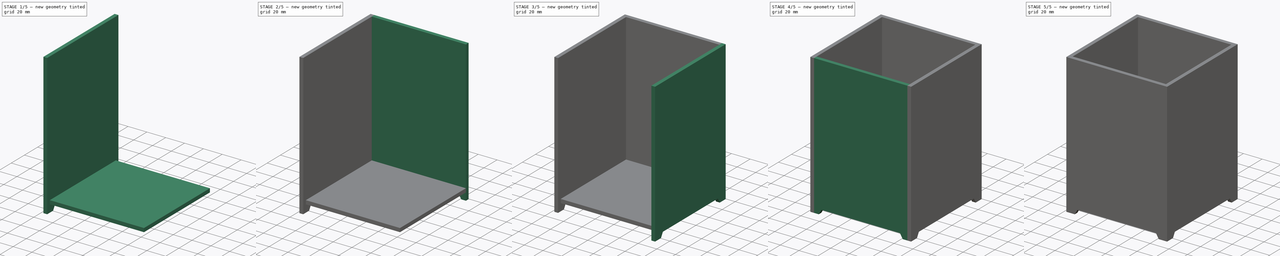
[diagram: build sequence overview — one tinted view per stage of 5, left to right]
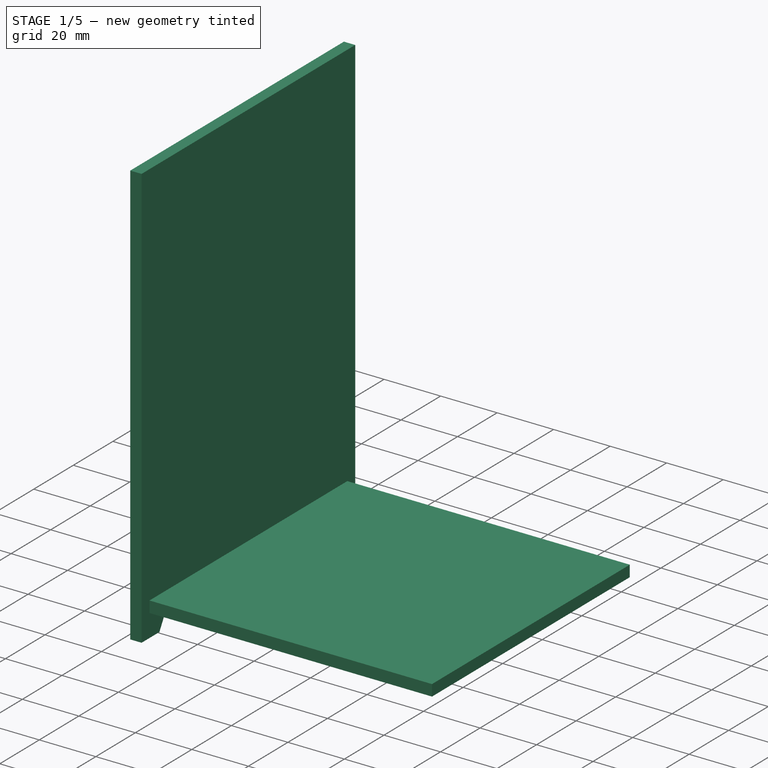
[diagram: stage 1 of 5 — iso view after this stage's code; geometry added in this stage tinted green]
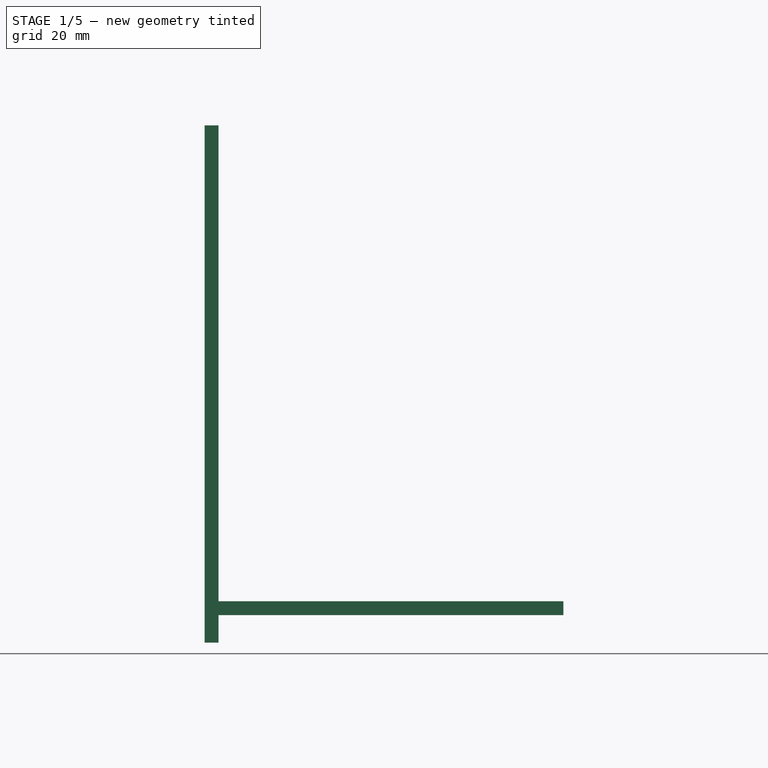
[diagram: stage 1 of 5 — front view after this stage's code; geometry added in this stage tinted green]
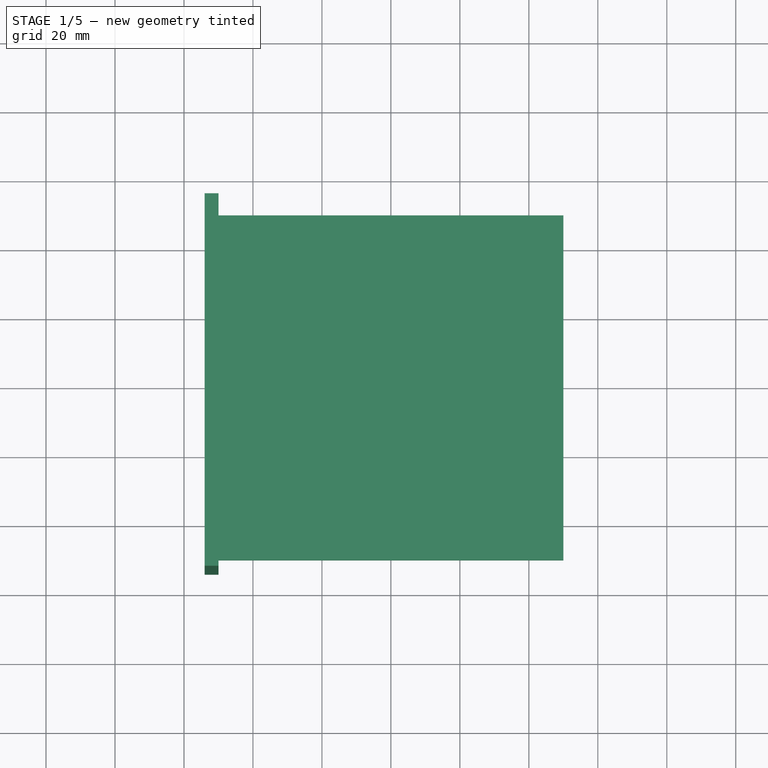
[diagram: stage 1 of 5 — top view after this stage's code; geometry added in this stage tinted green]
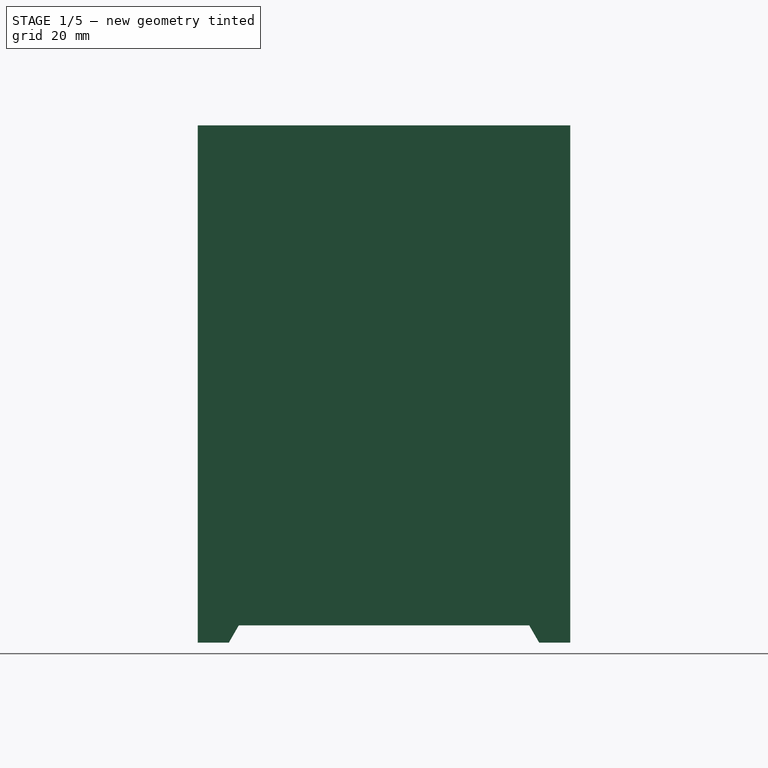
[diagram: stage 1 of 5 — right view after this stage's code; geometry added in this stage tinted green]
FCSTD DOCUMENT  (FreeCAD 1.0R39109 (Git))
Label: teelicht-template
License: All rights reserved
LicenseURL: http://en.wikipedia.org/wiki/All_rights_reserved
objects: Sketcher::SketchObject×8, Part::Box×6, Part::Cut×5, Part::FeaturePython×4, Part::Extrusion×3, PartDesign::Revolution×1, PartDesign::Body×1, Spreadsheet::Sheet×1
note: 38 computed .brp shape members not serialized (recipe doc carries the construction recipe); baked Part::Feature solids carry a one-line shape summary decoded from their .brp

FEATURE [Part::Box] Box004  label="Left Plate"
  AttacherType = Attacher::AttachEngine3D
  Height = 150
  Length = 4
  Placement = pos=(-54,-54,-12) rot=(0,0,1;0rad)
  Width = 108
  expr: .Placement.Base.x = -<<p>>.innerWidth / 2 - <<p>>.thickness
  expr: .Placement.Base.y = -<<p>>.innerWidth / 2 - <<p>>.thickness
  expr: .Placement.Base.z = -<<p>>.thickness - <<p>>.bottomOffset
  expr: Height = <<p>>.height
  expr: Length = <<p>>.thickness
  expr: Width = <<p>>.innerWidth + 2 * <<p>>.thickness
FEATURE [Sketcher::SketchObject] Sketch003  label="Sketch Foot Cut X"
  ArcFitTolerance = 0
  AttachmentSupport = -> [Box004]
  FullyConstrained = true
  MakeInternals = false
  MapMode = 5
  Placement = pos=(-54,-54,-12) rot=(0.57735,-0.57735,-0.57735;2.0944rad)
  expr: Constraints[12] = <<p>>.innerWidth - 2 * <<p>>.footWidth
  expr: Constraints[6] = <<p>>.thickness + <<p>>.footWidth
  expr: Constraints[8] = <<p>>.footHeight
  sketch-geometry (5):
    g0: LineSegment StartX=-99 StartY=0 StartZ=0 EndX=-96.1132 EndY=5 EndZ=0
    g1: LineSegment StartX=-96.1132 StartY=5 StartZ=0 EndX=-11.8868 EndY=5 EndZ=0
    g2: LineSegment StartX=-11.8868 StartY=5 StartZ=0 EndX=-9 EndY=0 EndZ=0
    g3: LineSegment StartX=-9 StartY=0 StartZ=0 EndX=-99 EndY=0 EndZ=0
    g4: LineSegment [constr] StartX=-54 StartY=0 StartZ=0 EndX=-54 EndY=5 EndZ=0
  constraints (14):
    c: PointOnObject(g0,g-1)
    c: Coincident(g0,g1)
    c: Horizontal(g1)
    c: Coincident(g1,g2)
    c: Coincident(g2,g3)
    c: Coincident(g3,g0)
    c: DistanceX(g2,g-1) = 9
    c: Angle(g2,g3) = 1.0472
    c: DistanceY(g0,g0) = 5
    c: Symmetric(g3,g3,g4)
    c: Symmetric(g1,g1,g4)
    c: Vertical(g4)
    c: Distance(g3) = 90
    c: Horizontal(g3)
FEATURE [Part::Extrusion] Extrude004  label="Foot Cut X"
  Base = -> Sketch003
  Dir = (-1,0,0)
  DirMode = 2
  FaceMakerClass = Part::FaceMakerBullseye
  FaceMakerMode = 3
  LengthFwd = 200
  LengthRev = 0
  Reversed = true
  Solid = true
  Symmetric = false
FEATURE [Part::Cut] Cut003  label="Left Plate With Feet"
  Base = -> Box004
  Tool = -> Extrude004
FEATURE [Part::Box] Box001  label="Bottom Plate"
  AttacherType = Attacher::AttachEngine3D
  Height = 4
  Length = 100
  Placement = pos=(-50,-50,-4) rot=(0,0,1;0rad)
  Width = 100
  expr: .Placement.Base.x = -<<p>>.innerWidth / 2
  expr: .Placement.Base.y = -<<p>>.innerWidth / 2
  expr: .Placement.Base.z = -<<p>>.thickness
  expr: Height = <<p>>.thickness
  expr: Length = <<p>>.innerWidth
  expr: Width = <<p>>.innerWidth
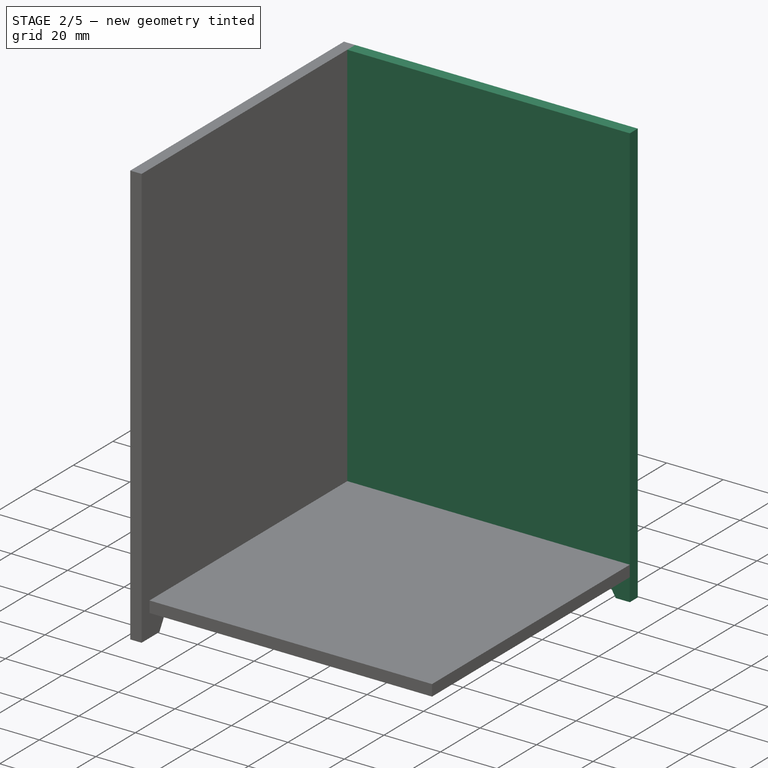
[diagram: stage 2 of 5 — iso view after this stage's code; geometry added in this stage tinted green]
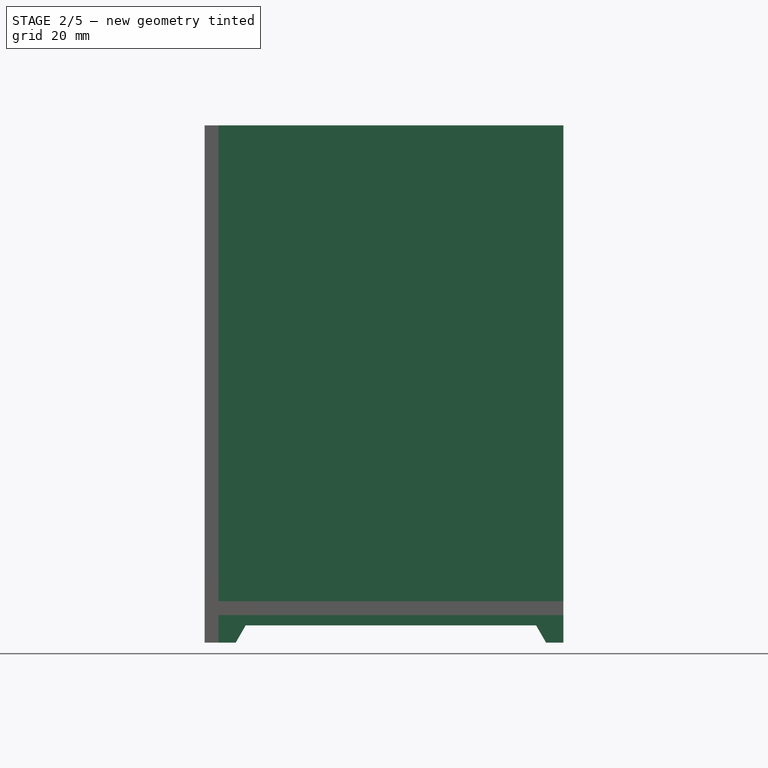
[diagram: stage 2 of 5 — front view after this stage's code; geometry added in this stage tinted green]
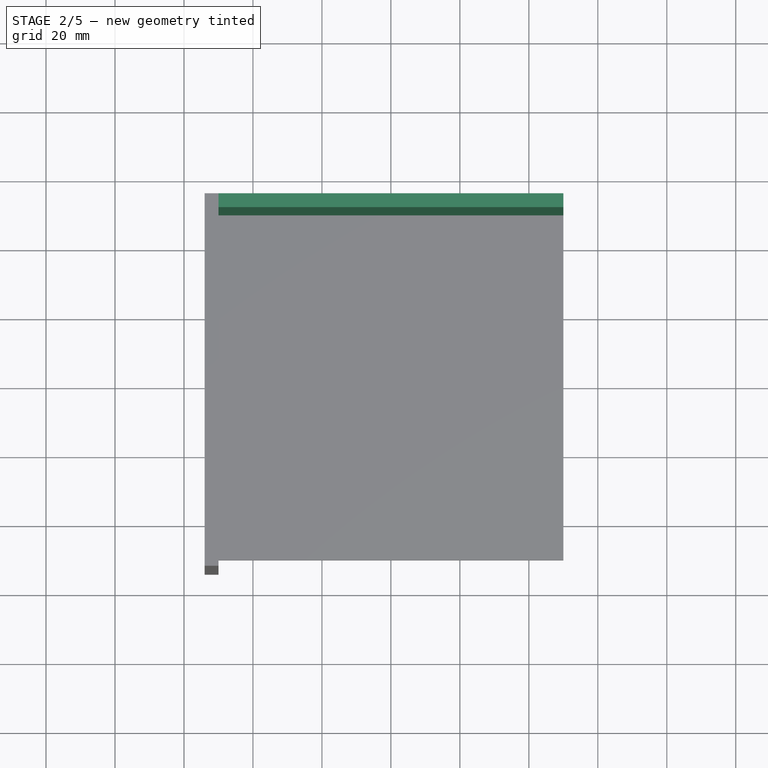
[diagram: stage 2 of 5 — top view after this stage's code; geometry added in this stage tinted green]
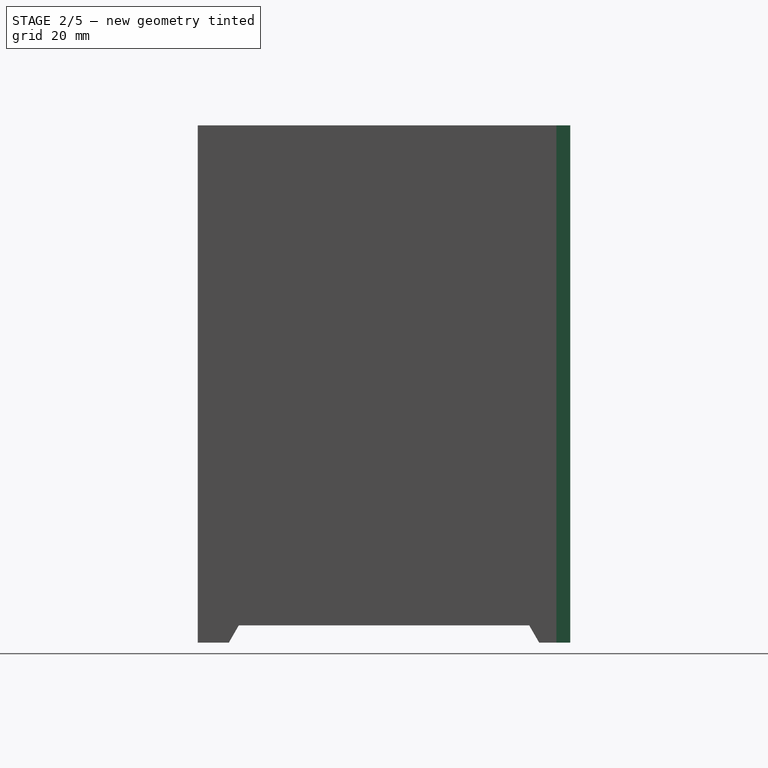
[diagram: stage 2 of 5 — right view after this stage's code; geometry added in this stage tinted green]
FEATURE [Part::Box] Box003  label="Back Plate"
  AttacherType = Attacher::AttachEngine3D
  Height = 150
  Length = 100
  Placement = pos=(-50,50,-12) rot=(0,0,1;0rad)
  Width = 4
  expr: .Placement.Base.x = -<<p>>.innerWidth / 2
  expr: .Placement.Base.y = <<p>>.innerWidth / 2
  expr: .Placement.Base.z = -<<p>>.thickness - <<p>>.bottomOffset
  expr: Height = <<p>>.height
  expr: Length = <<p>>.innerWidth
  expr: Width = <<p>>.thickness
FEATURE [Sketcher::SketchObject] Sketch002  label="Sketch Foot Cut Y"
  ArcFitTolerance = 0
  AttachmentSupport = -> [Box002]
  FullyConstrained = true
  MakeInternals = false
  MapMode = 5
  Placement = pos=(-50,-54,-12) rot=(1,0,0;1.5708rad)
  expr: Constraints[13] = <<p>>.innerWidth - 2 * <<p>>.footWidth
  expr: Constraints[7] = <<p>>.footWidth
  expr: Constraints[8] = <<p>>.footHeight
  sketch-geometry (5):
    g0: LineSegment StartX=5 StartY=0 StartZ=0 EndX=7.88675 EndY=5 EndZ=0
    g1: LineSegment StartX=7.88675 StartY=5 StartZ=0 EndX=92.1132 EndY=5 EndZ=0
    g2: LineSegment StartX=92.1132 StartY=5 StartZ=0 EndX=95 EndY=0 EndZ=0
    g3: LineSegment StartX=95 StartY=0 StartZ=0 EndX=5 EndY=0 EndZ=0
    g4: LineSegment [constr] StartX=50 StartY=0 StartZ=0 EndX=50 EndY=5 EndZ=0
  constraints (14):
    c: Coincident(g0,g1)
    c: Horizontal(g1)
    c: Coincident(g1,g2)
    c: Coincident(g2,g3)
    c: Coincident(g3,g0)
    c: Horizontal(g3)
    c: Angle(g3,g0) = 1.0472
    c: DistanceX(g0) = 5
    c: DistanceY(g0,g0) = 5
    c: Symmetric(g3,g3,g4)
    c: Symmetric(g1,g1,g4)
    c: Vertical(g4)
    c: PointOnObject(g-1,g3)
    c: Distance(g3) = 90
FEATURE [Part::Extrusion] Extrude001  label="Foot Cut Y"
  Base = -> Sketch002
  Dir = (0,-1,2e-16)
  DirMode = 2
  FaceMakerClass = Part::FaceMakerBullseye
  FaceMakerMode = 3
  LengthFwd = 200
  LengthRev = 0
  Reversed = true
  Solid = true
  Symmetric = false
FEATURE [Part::Cut] Cut002  label="Back Plate With Feet"
  Base = -> Box003
  Tool = -> Extrude001
FEATURE [Part::FeaturePython] Slice003  label="Left Plate Bordered"  # WARN: FeaturePython — macro-defined, semantics opaque (R4)
  Base = -> Cut003
  Mode = 1
  Tolerance = 0
  Tools = -> [Sketch007]
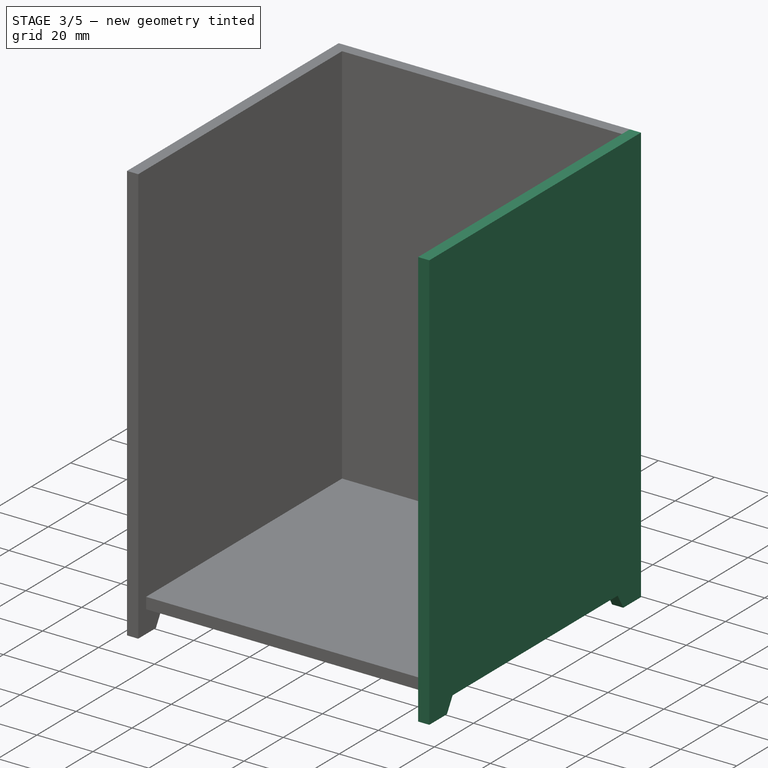
[diagram: stage 3 of 5 — iso view after this stage's code; geometry added in this stage tinted green]
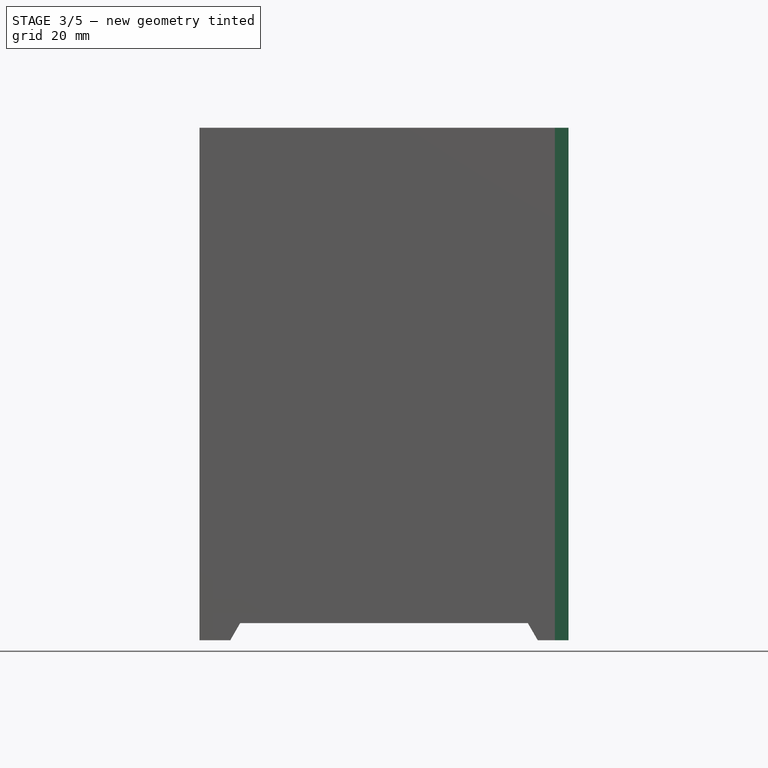
[diagram: stage 3 of 5 — front view after this stage's code; geometry added in this stage tinted green]
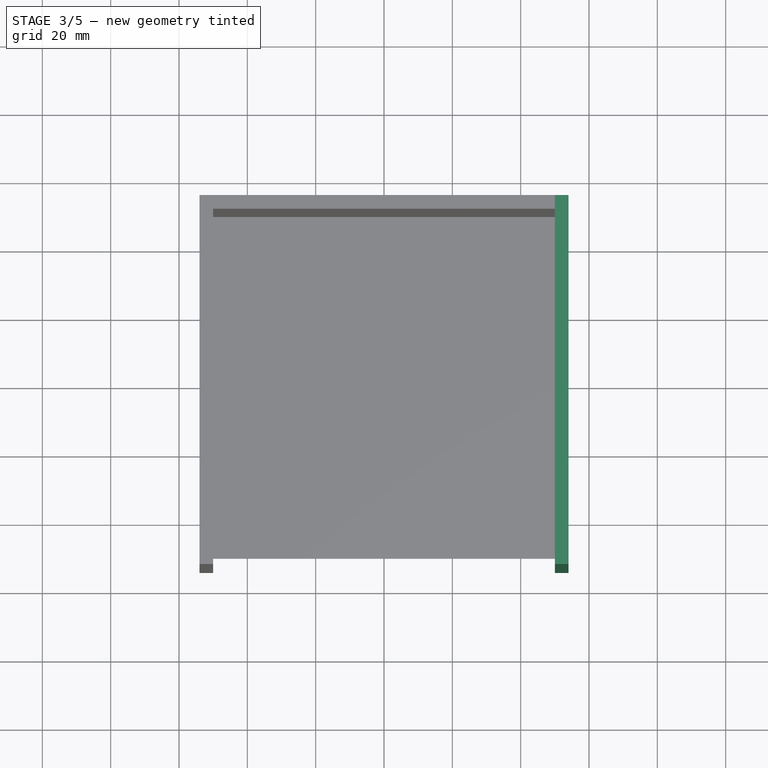
[diagram: stage 3 of 5 — top view after this stage's code; geometry added in this stage tinted green]
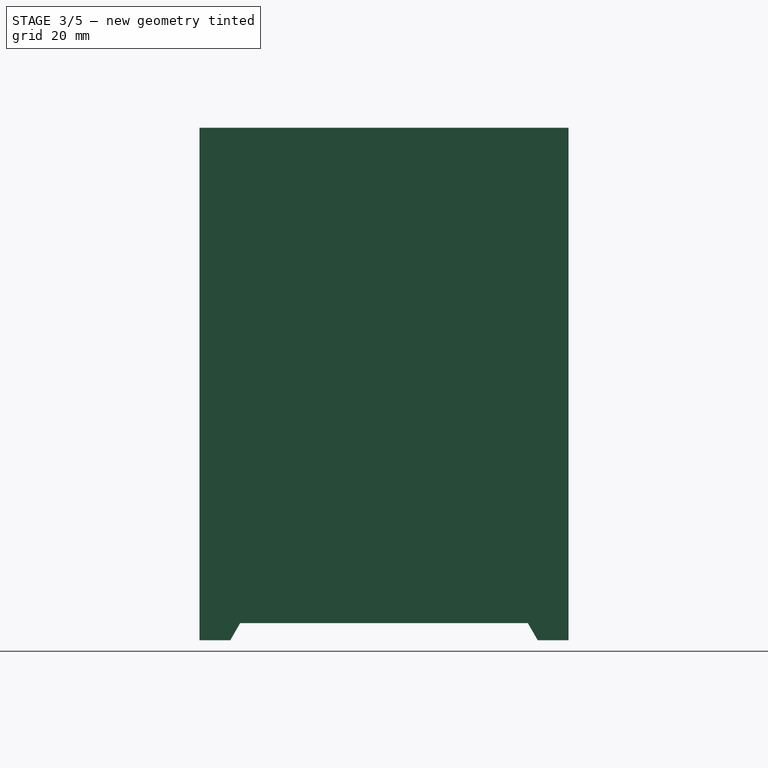
[diagram: stage 3 of 5 — right view after this stage's code; geometry added in this stage tinted green]
FEATURE [Part::Box] Box005  label="Right Plate"
  AttacherType = Attacher::AttachEngine3D
  Height = 150
  Length = 4
  Placement = pos=(50,-54,-12) rot=(0,0,1;0rad)
  Width = 108
  expr: .Placement.Base.x = <<p>>.innerWidth / 2
  expr: .Placement.Base.y = -<<p>>.innerWidth / 2 - <<p>>.thickness
  expr: .Placement.Base.z = -<<p>>.thickness - <<p>>.bottomOffset
  expr: Height = <<p>>.height
  expr: Length = <<p>>.thickness
  expr: Width = <<p>>.innerWidth + 2 * <<p>>.thickness
FEATURE [Part::Cut] Cut004  label="Right Plate With Feet"
  Base = -> Box005
  Tool = -> Extrude004
FEATURE [Sketcher::SketchObject] Sketch006  label="Voronoi Border Back"
  ArcFitTolerance = 0
  AttachmentSupport = -> [Cut002]
  FullyConstrained = true
  MakeInternals = false
  MapMode = 5
  Placement = pos=(0,54,0) rot=(0,0.707107,0.707107;3.14159rad)
  expr: Constraints[10] = <<p>>.voronoiBorderBottomOffset
  expr: Constraints[7] = <<p>>.innerWidth - 2 * <<p>>.voronoiBorder
  expr: Constraints[8] = <<p>>.voronoiBorderHeight
  sketch-geometry (4):
    g0: LineSegment StartX=-45 StartY=133 StartZ=0 EndX=45 EndY=133 EndZ=0
    g1: LineSegment StartX=45 StartY=133 StartZ=0 EndX=45 EndY=3 EndZ=0
    g2: LineSegment StartX=45 StartY=3 StartZ=0 EndX=-45 EndY=3 EndZ=0
    g3: LineSegment StartX=-45 StartY=3 StartZ=0 EndX=-45 EndY=133 EndZ=0
  constraints (11):
    c: Coincident(g0,g1)
    c: Coincident(g1,g2)
    c: Coincident(g2,g3)
    c: Coincident(g3,g0)
    c: Horizontal(g0)
    c: Vertical(g1)
    c: Vertical(g3)
    c: Distance(g0) = 90
    c: Distance(g1) = 130
    c: Symmetric(g2,g1,g-2)
    c: DistanceY(g-1,g1) = 3
FEATURE [Sketcher::SketchObject] Sketch007  label="Voronoi Border Left"
  ArcFitTolerance = 0
  AttachmentSupport = -> [Cut003]
  FullyConstrained = true
  MakeInternals = false
  MapMode = 5
  Placement = pos=(-54,0,0) rot=(0.57735,-0.57735,-0.57735;2.0944rad)
  expr: Constraints[10] = <<p>>.voronoiBorderHeight
  expr: Constraints[8] = <<p>>.innerWidth - 2 * <<p>>.voronoiBorder
  expr: Constraints[9] = <<p>>.voronoiBorderBottomOffset
  sketch-geometry (4):
    g0: LineSegment StartX=-45 StartY=133 StartZ=0 EndX=45 EndY=133 EndZ=0
    g1: LineSegment StartX=45 StartY=133 StartZ=0 EndX=45 EndY=3 EndZ=0
    g2: LineSegment StartX=45 StartY=3 StartZ=0 EndX=-45 EndY=3 EndZ=0
    g3: LineSegment StartX=-45 StartY=3 StartZ=0 EndX=-45 EndY=133 EndZ=0
  constraints (11):
    c: Coincident(g0,g1)
    c: Coincident(g1,g2)
    c: Coincident(g2,g3)
    c: Coincident(g3,g0)
    c: Horizontal(g0)
    c: Vertical(g1)
    c: Vertical(g3)
    c: Symmetric(g1,g2,g-2)
    c: Distance(g0) = 90
    c: DistanceY(g-1,g1) = 3
    c: Distance(g1) = 130
FEATURE [Part::FeaturePython] Slice002  label="Back Plate Bordered"  # WARN: FeaturePython — macro-defined, semantics opaque (R4)
  Base = -> Cut002
  Mode = 1
  Tolerance = 0
  Tools = -> [Sketch006]
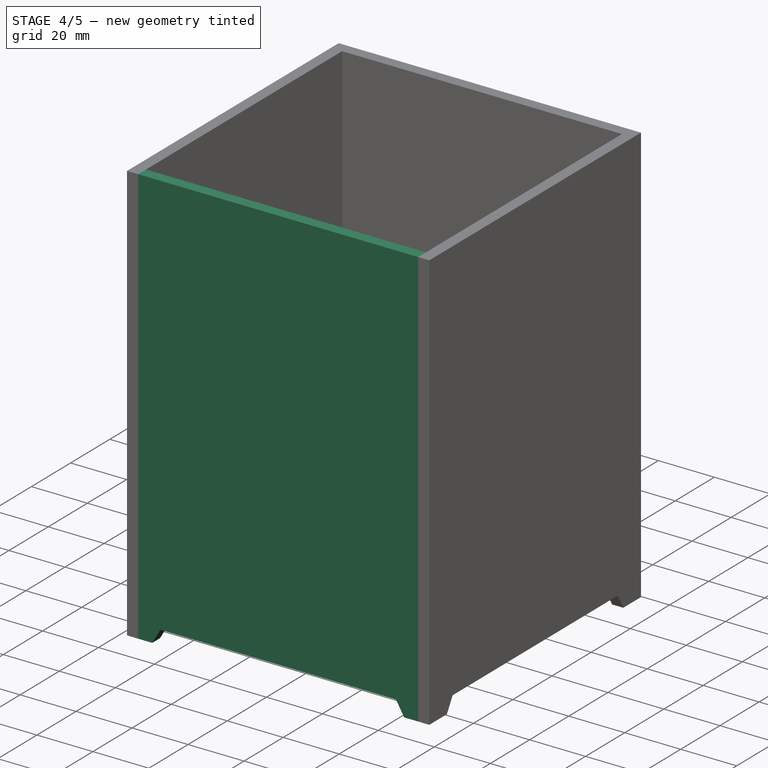
[diagram: stage 4 of 5 — iso view after this stage's code; geometry added in this stage tinted green]
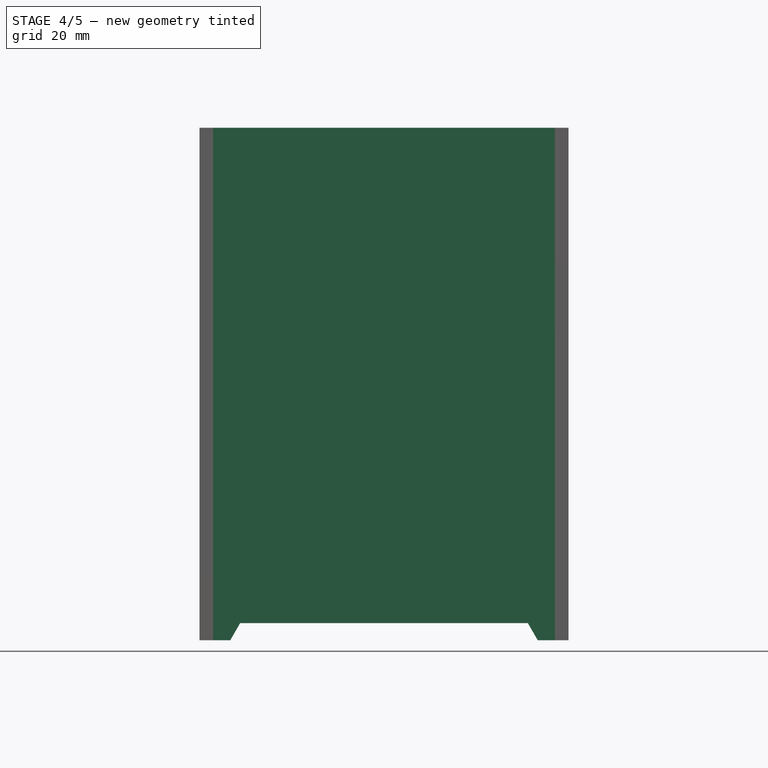
[diagram: stage 4 of 5 — front view after this stage's code; geometry added in this stage tinted green]
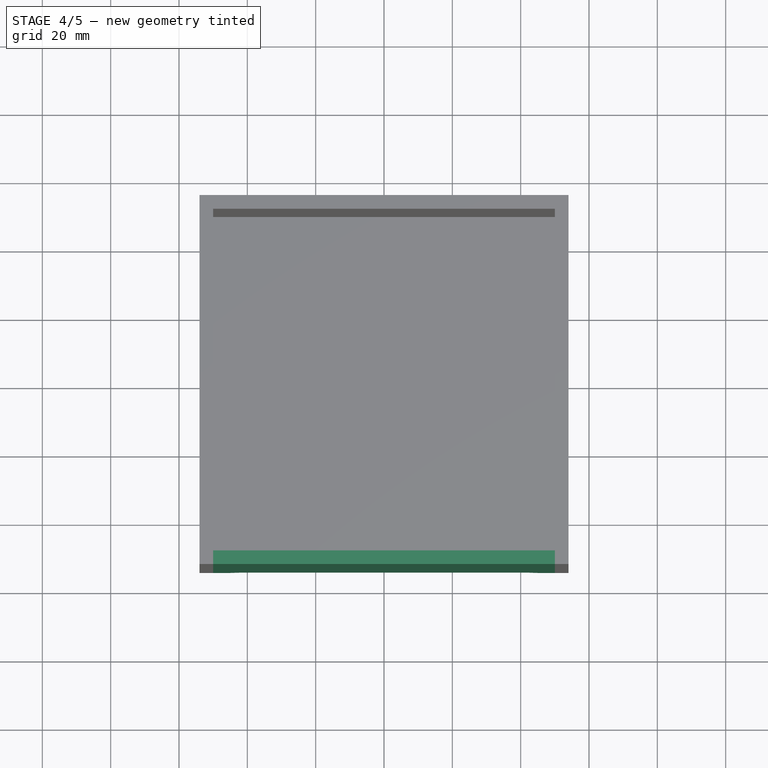
[diagram: stage 4 of 5 — top view after this stage's code; geometry added in this stage tinted green]
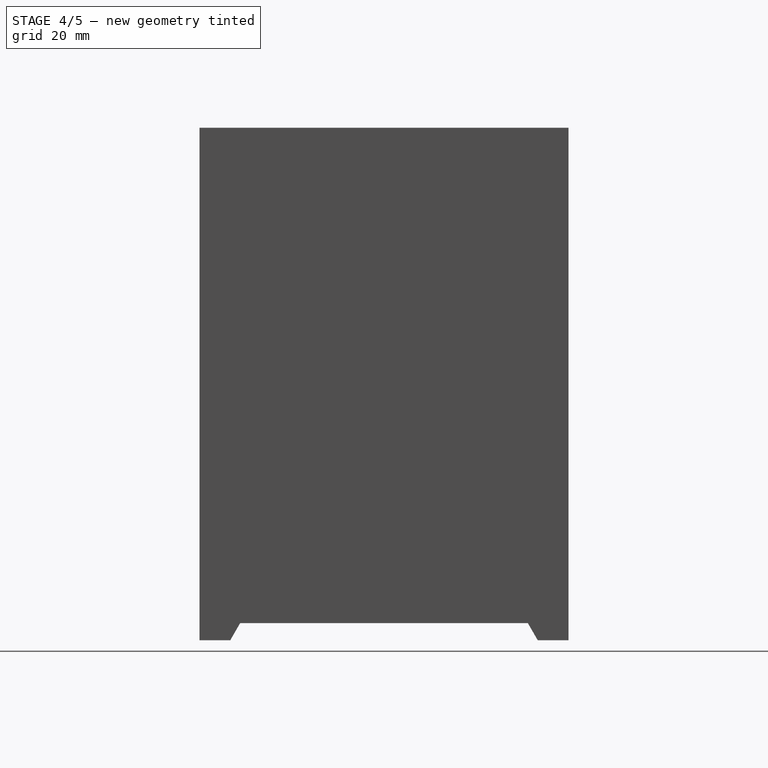
[diagram: stage 4 of 5 — right view after this stage's code; geometry added in this stage tinted green]
FEATURE [Part::Box] Box002  label="Front Plate"
  AttacherType = Attacher::AttachEngine3D
  Height = 150
  Length = 100
  Placement = pos=(-50,-54,-12) rot=(0,0,1;0rad)
  Width = 4
  expr: .Placement.Base.x = -<<p>>.innerWidth / 2
  expr: .Placement.Base.y = -<<p>>.innerWidth / 2 - <<p>>.thickness
  expr: .Placement.Base.z = -<<p>>.thickness - <<p>>.bottomOffset
  expr: Height = <<p>>.height
  expr: Length = <<p>>.innerWidth
  expr: Width = <<p>>.thickness
FEATURE [Part::Cut] Cut001  label="Front Plate With Feet"
  Base = -> Box002
  Tool = -> Extrude001
FEATURE [Sketcher::SketchObject] Sketch004  label="Voronoi Border Front"
  ArcFitTolerance = 0
  AttachmentSupport = -> [Cut001]
  FullyConstrained = true
  MakeInternals = false
  MapMode = 5
  Placement = pos=(0,-54,0) rot=(1,0,0;1.5708rad)
  expr: Constraints[10] = <<p>>.voronoiBorderHeight
  expr: Constraints[8] = <<p>>.voronoiBorderBottomOffset
  expr: Constraints[9] = <<p>>.innerWidth - 2 * <<p>>.voronoiBorder
  sketch-geometry (4):
    g0: LineSegment StartX=-45 StartY=133 StartZ=0 EndX=45 EndY=133 EndZ=0
    g1: LineSegment StartX=45 StartY=133 StartZ=0 EndX=45 EndY=3 EndZ=0
    g2: LineSegment StartX=45 StartY=3 StartZ=0 EndX=-45 EndY=3 EndZ=0
    g3: LineSegment StartX=-45 StartY=3 StartZ=0 EndX=-45 EndY=133 EndZ=0
  constraints (11):
    c: Coincident(g0,g1)
    c: Coincident(g1,g2)
    c: Coincident(g2,g3)
    c: Coincident(g3,g0)
    c: Horizontal(g2)
    c: Vertical(g1)
    c: Vertical(g3)
    c: Symmetric(g0,g0,g-2)
    c: DistanceY(g-1,g1) = 3
    c: Distance(g0) = 90
    c: Distance(g1) = 130
FEATURE [Part::FeaturePython] Slice  label="Front Plate Bordered"  # WARN: FeaturePython — macro-defined, semantics opaque (R4)
  Base = -> Cut001
  Mode = 1
  Tolerance = 0
  Tools = -> [Sketch004]
FEATURE [Sketcher::SketchObject] Sketch005  label="Voronoi Border Right"
  ArcFitTolerance = 0
  AttachmentSupport = -> [Cut004]
  FullyConstrained = true
  MakeInternals = false
  MapMode = 5
  Placement = pos=(54,0,0) rot=(0.57735,0.57735,0.57735;2.0944rad)
  expr: Constraints[10] = <<p>>.innerWidth - 2 * <<p>>.voronoiBorder
  expr: Constraints[8] = <<p>>.voronoiBorderBottomOffset
  expr: Constraints[9] = <<p>>.voronoiBorderHeight
  sketch-geometry (4):
    g0: LineSegment StartX=-45 StartY=133 StartZ=0 EndX=45 EndY=133 EndZ=0
    g1: LineSegment StartX=45 StartY=133 StartZ=0 EndX=45 EndY=3 EndZ=0
    g2: LineSegment StartX=45 StartY=3 StartZ=0 EndX=-45 EndY=3 EndZ=0
    g3: LineSegment StartX=-45 StartY=3 StartZ=0 EndX=-45 EndY=133 EndZ=0
  constraints (11):
    c: Coincident(g0,g1)
    c: Coincident(g1,g2)
    c: Coincident(g2,g3)
    c: Coincident(g3,g0)
    c: Horizontal(g0)
    c: Vertical(g1)
    c: Vertical(g3)
    c: Symmetric(g2,g1,g-2)
    c: DistanceY(g-1,g1) = 3
    c: Distance(g1) = 130
    c: Distance(g0) = 90
FEATURE [Part::FeaturePython] Slice001  label="Right Plate Bordered"  # WARN: FeaturePython — macro-defined, semantics opaque (R4)
  Base = -> Cut004
  Mode = 1
  Tolerance = 0
  Tools = -> [Sketch005]
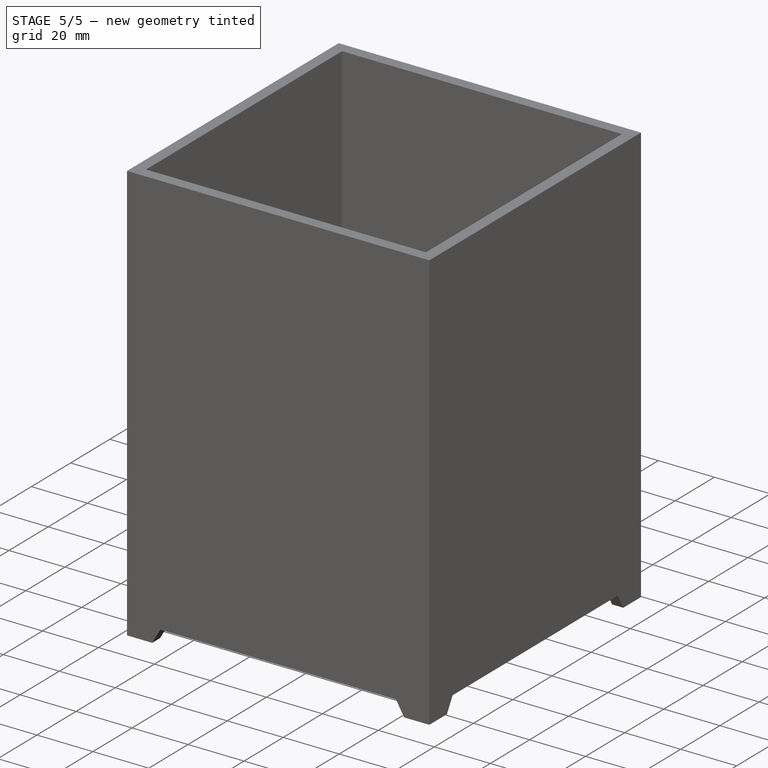
[diagram: stage 5 of 5 — iso view after this stage's code; geometry added in this stage tinted green]
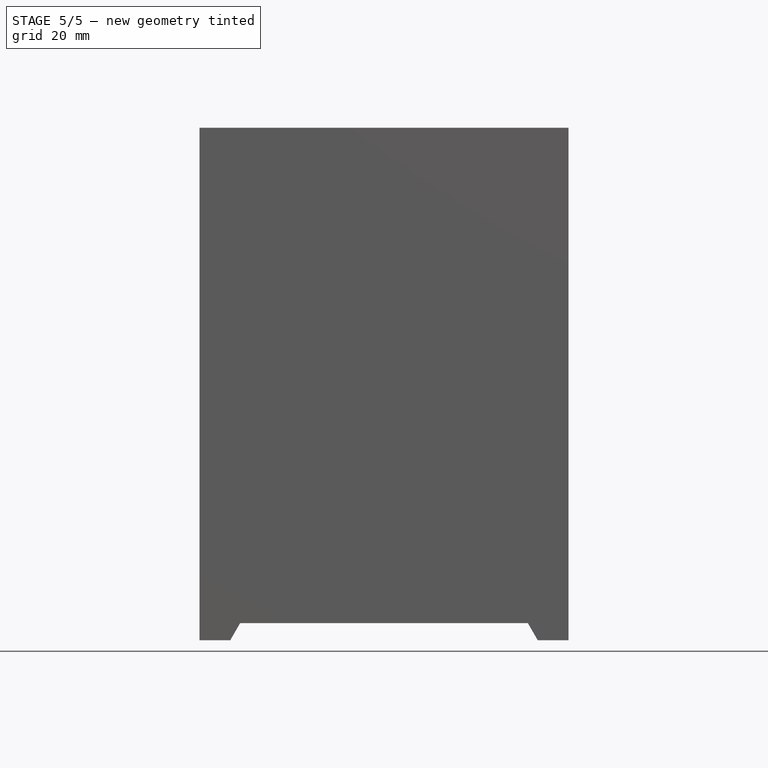
[diagram: stage 5 of 5 — front view after this stage's code; geometry added in this stage tinted green]
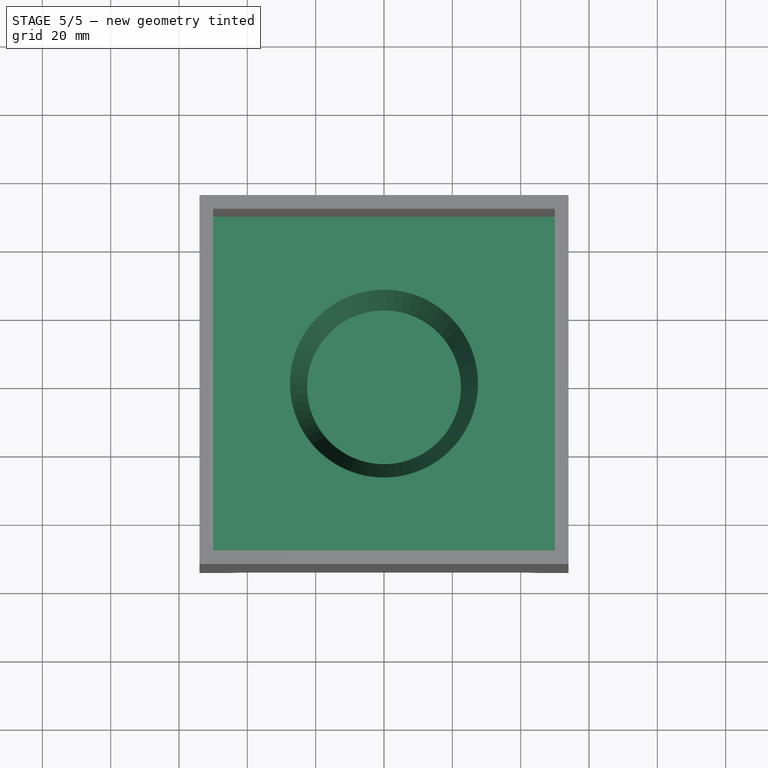
[diagram: stage 5 of 5 — top view after this stage's code; geometry added in this stage tinted green]
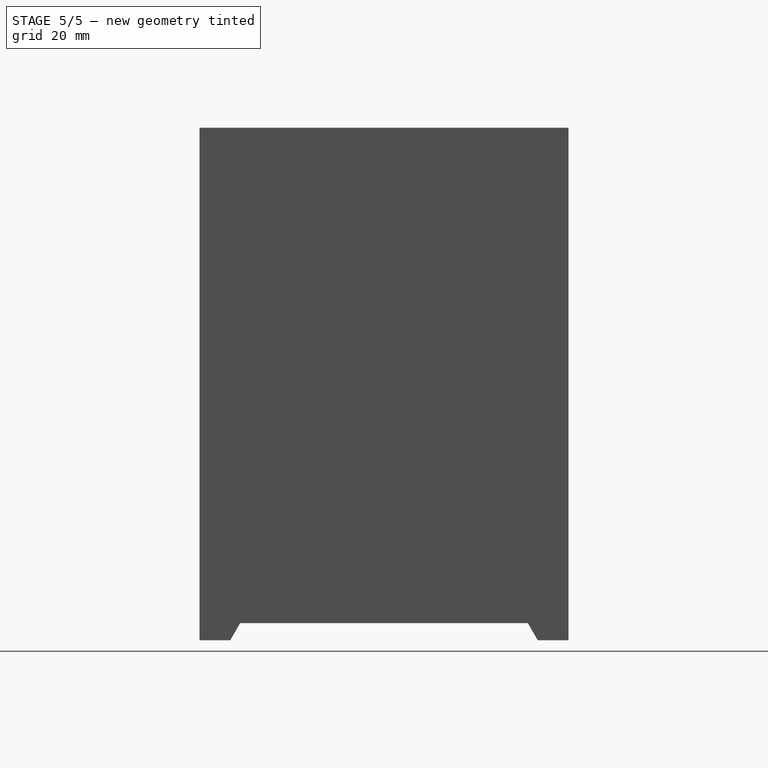
[diagram: stage 5 of 5 — right view after this stage's code; geometry added in this stage tinted green]
FEATURE [Sketcher::SketchObject] Sketch
  ArcFitTolerance = 0
  AttachmentSupport = -> [XZ_Plane]
  FullyConstrained = true
  MakeInternals = false
  MapMode = 5
  Placement = pos=(0,0,0) rot=(1,0,0;1.5708rad)
  sketch-geometry (7):
    g0: LineSegment StartX=0 StartY=0 StartZ=0 EndX=-24.4444 EndY=0 EndZ=0
    g1: LineSegment StartX=-24.4444 StartY=0 StartZ=0 EndX=-30 EndY=70 EndZ=0
    g2: LineSegment StartX=-30 StartY=70 StartZ=0 EndX=-27.5 EndY=70 EndZ=0
    g3: LineSegment StartX=-27.5 StartY=70 StartZ=0 EndX=-22.5 EndY=7 EndZ=0
    g4: LineSegment StartX=-22.5 StartY=7 StartZ=0 EndX=0 EndY=7 EndZ=0
    g5: LineSegment StartX=0 StartY=7 StartZ=0 EndX=0 EndY=0 EndZ=0
    g6: LineSegment [constr] StartX=-22.5 StartY=7 StartZ=0 EndX=-25 EndY=7 EndZ=0
  constraints (20):
    c: Coincident(g-1,g0)
    c: PointOnObject(g0,g-1)
    c: Coincident(g0,g1)
    c: Coincident(g1,g2)
    c: Coincident(g2,g3)
    c: Coincident(g3,g4)
    c: Horizontal(g4)
    c: Coincident(g4,g5)
    c: Coincident(g5,g0)
    c: Horizontal(g2)
    c: Distance(g4) = 22.5
    c: DistanceX(g2,g4) = 27.5
    c: Vertical(g5)
    c: DistanceX(g1,g4) = 30
    c: DistanceY(g0,g1) = 70
    c: Distance(g5) = 7
    c: Coincident(g6,g3)
    c: PointOnObject(g6,g1)
    c: Horizontal(g6)
    c: Distance(g6) = 2.5
FEATURE [PartDesign::Revolution] Revolution  label="Glass"
  Angle = 360
  Angle2 = 60
  Axis = (0,2e-16,1)
  Base = (0,0,0)
  Placement = pos=(0,0,0) rot=(1,0,0;1.5708rad)
  Profile = -> Sketch
  ReferenceAxis = -> Sketch [V_Axis]
  Suppressed = false
  Type = 0
FEATURE [PartDesign::Body] Body  label="Glass-Body"
  AllowCompound = false
  Group = -> [Sketch,Revolution]
  Origin = -> Origin
  Tip = -> Revolution
FEATURE [Spreadsheet::Sheet] Spreadsheet  label="p"
  cells = A1='thickness; B1(thickness)=4; C1='Material thickness; A2='innerWidth; B2(innerWidth)=100; A3='height; B3(height)=150; C3='Total height; A4='bottomOffset; B4(bottomOffset)=8; C4='Free space under bottom plate; A5='footHeight; B5(footHeight)=5; A6='footWidth; B6(footWidth)=5; A7='holderDiameter; B7(holderDiameter)=52; C7='Diameter of  hole in glass holder; A8='voronoiBorder; B8(voronoiBorder)=5; C8='Padding around Voronoi pattern; A9='voronoiBorderBottomOffset; B9(voronoiBorderBottomOffset)=3; C9='Additional spacing between bottom plate and Voronoi pattern; A11='voronoiBorderHeight; B11(voronoiBorderHeight)==height - voronoiBorder - bottomOffset - thickness - voronoiBorderBottomOffset; C11='Calculated height of Voronoi pattern
FEATURE [Part::Box] Box  label="Glass Holder Plate"
  AttacherType = Attacher::AttachEngine3D
  Height = 4
  Length = 100
  Placement = pos=(-50,-50,0) rot=(0,0,1;0rad)
  Width = 100
  expr: .Placement.Base.x = -<<p>>.innerWidth / 2
  expr: .Placement.Base.y = -<<p>>.innerWidth / 2
  expr: Height = <<p>>.thickness
  expr: Length = <<p>>.innerWidth
  expr: Width = <<p>>.innerWidth
FEATURE [Sketcher::SketchObject] Sketch001  label="Glass Holder Hole Sketch"
  ArcFitTolerance = 0
  AttachmentSupport = -> [Box]
  ExternalGeometry = -> [Box]
  FullyConstrained = false
  MakeInternals = false
  MapMode = 5
  Placement = pos=(-50,-50,0) rot=(1,0,0;3.14159rad)
  expr: Constraints[0] = <<p>>.holderDiameter
  sketch-geometry (4):
    g0: Circle CenterX=50 CenterY=-50 CenterZ=0 NormalX=0 NormalY=0 NormalZ=1 AngleXU=0 Radius=26
    g1: LineSegment [constr] StartX=0 StartY=-100 StartZ=0 EndX=100 EndY=0 EndZ=0
    g2: LineSegment [constr] StartX=100 StartY=-100 StartZ=0 EndX=50 EndY=-50 EndZ=0
    g3: GeomPoint [constr] X=119.06 Y=-36.3422 Z=0
  constraints (7):
    c: Diameter(g0) = 52
    c: Coincident(g1,g-3)
    c: Coincident(g-4,g1)
    c: Coincident(g2,g-5)
    c: PointOnObject(g2,g1)
    c: Perpendicular(g1,g2)
    c: Coincident(g0,g2)
FEATURE [Part::Extrusion] Extrude  label="Glass Holder Hole"
  Base = -> Sketch001
  Dir = (0,0,-1)
  DirMode = 2
  FaceMakerClass = Part::FaceMakerBullseye
  FaceMakerMode = 3
  LengthFwd = 10
  LengthRev = 0
  Reversed = true
  Solid = true
  Symmetric = false
FEATURE [Part::Cut] Cut  label="Glass Holder"
  Base = -> Box
  Tool = -> Extrude
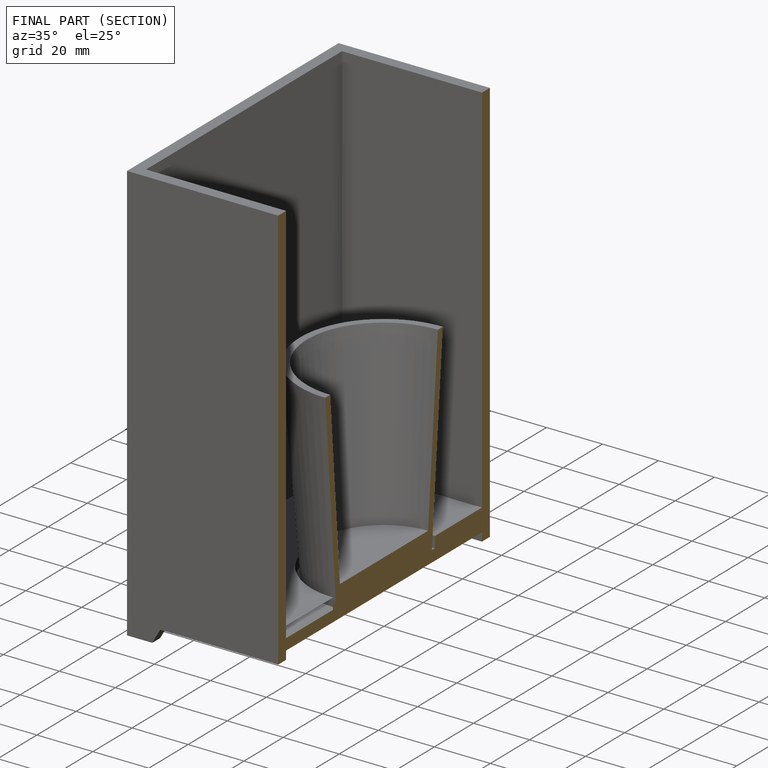
[diagram: finished part — half-section view (interior)]
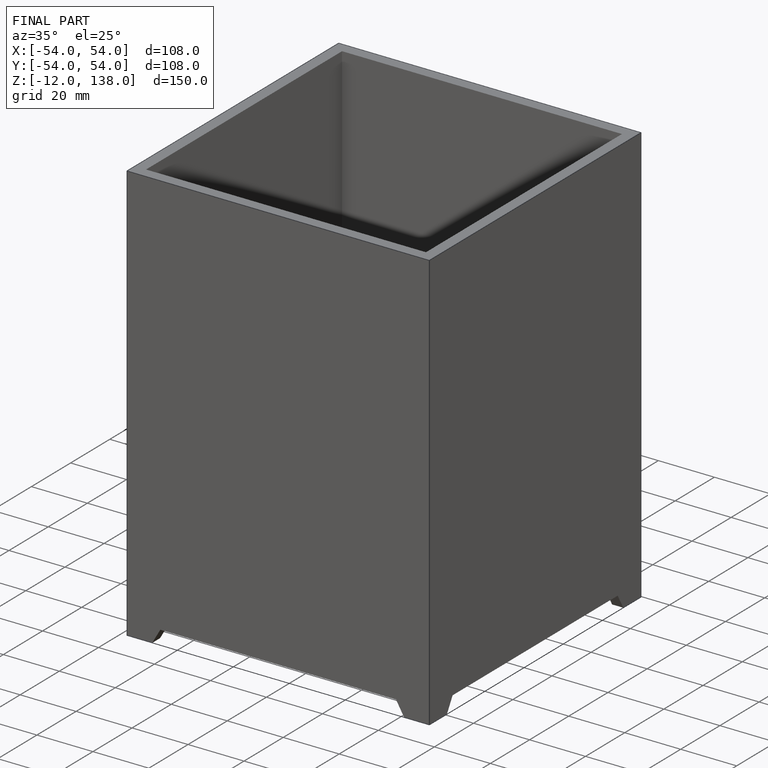
[diagram: finished part — iso view with bounding-box wireframe]
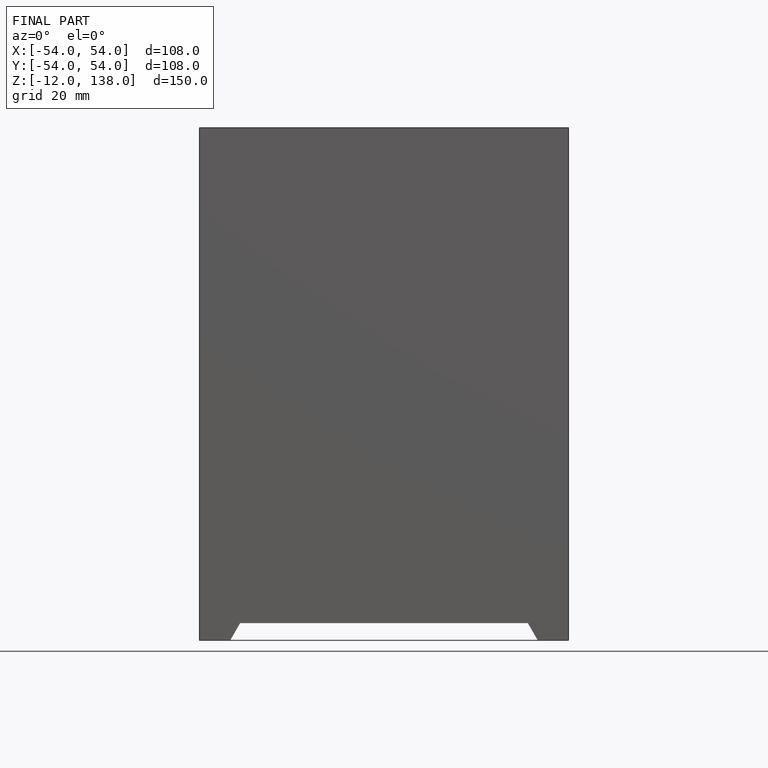
[diagram: finished part — front view with bounding-box wireframe]
